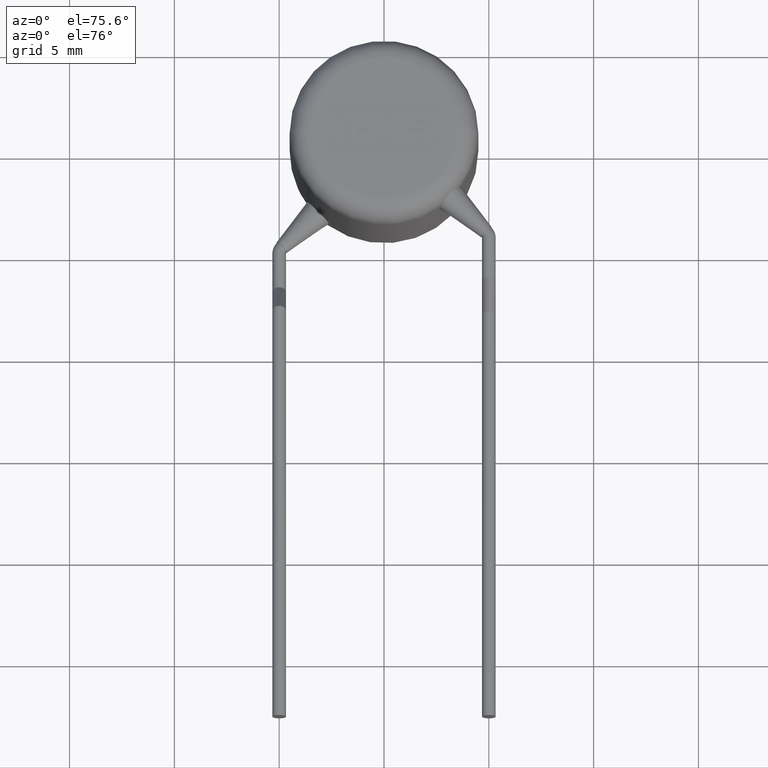
[diagram: clean part render]
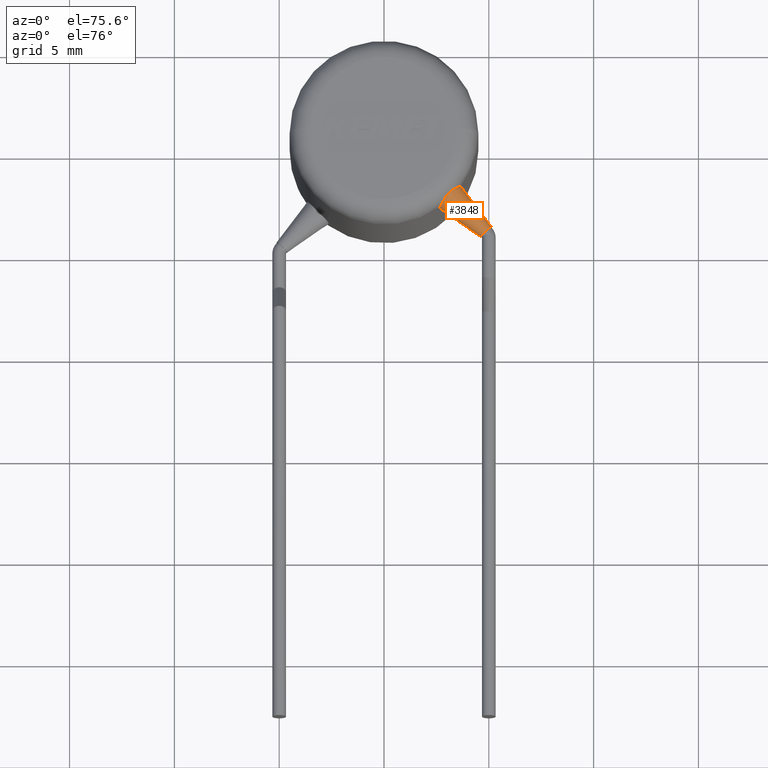
[diagram: same view with one face highlighted and labeled with its STEP entity id]
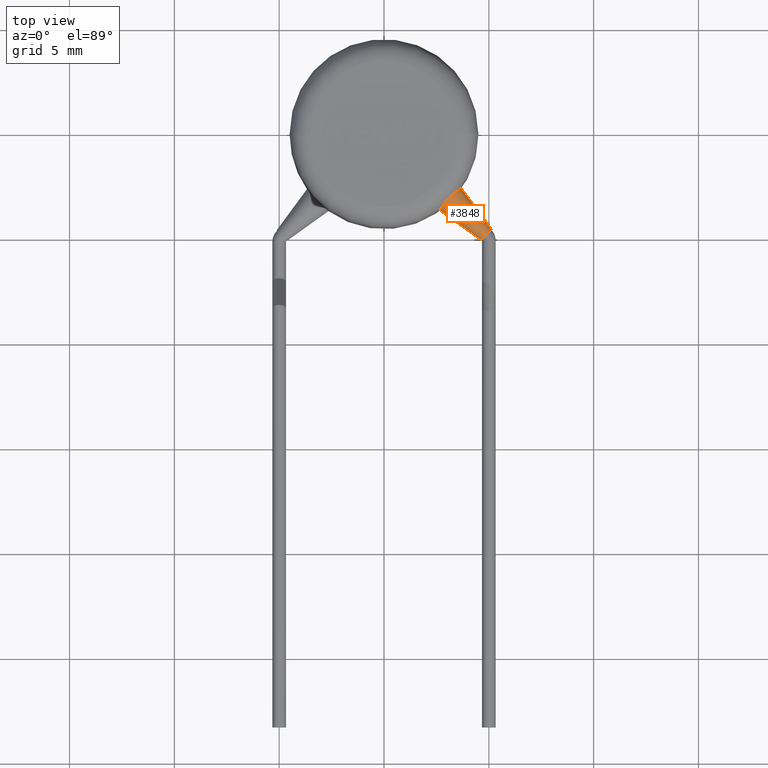
[diagram: same view with one face highlighted and labeled with its STEP entity id]
A machine part, auxiliary view. The second image highlights one B-rep face of the part: STEP entity #3848.
A second angle (top view) of the same face is appended — the face is thin or edge-on in the first view.
In plain terms, the highlighted conical surface has half-angle 9 deg.
Its self-contained STEP definition (entity closure, byte-faithful):
#18 = CARTESIAN_POINT ( 'NONE',  ( 3.537774627374341600, -2.731539401841060600, 4.767834668631663500 ) ) ;
#22 = ORIENTED_EDGE ( 'NONE', *, *, #4138, .T. ) ;
#63 = CARTESIAN_POINT ( 'NONE',  ( 2.916615913242144800, -3.298463240625549200, 4.943112092719712100 ) ) ;
#114 = DIRECTION ( 'NONE',  ( -0.7118797090993509400, 0.7023014166101501100, -0.0000000000000000000 ) ) ;
#149 = CARTESIAN_POINT ( 'NONE',  ( 5.126726062457616500, -4.566090218175484800, 4.250000000000000000 ) ) ;
#159 = CARTESIAN_POINT ( 'NONE',  ( 3.666443576743136900, -2.609235454823797700, 4.419790969414293600 ) ) ;
#259 = DIRECTION ( 'NONE',  ( -0.5932511421792816500, 0.8050174422352459600, 0.0000000000000000000 ) ) ;
#359 = CARTESIAN_POINT ( 'NONE',  ( 2.646112073073608100, -3.639792699692399900, 4.250000000000000000 ) ) ;
#362 = VECTOR ( 'NONE', #259, 1000.000000000000100 ) ;
#370 = AXIS2_PLACEMENT_3D ( 'NONE', #2125, #114, #4201 ) ;
#379 = CARTESIAN_POINT ( 'NONE',  ( 2.778457072696073100, -3.501578080557171500, 4.766552044153065100 ) ) ;
#426 = ORIENTED_EDGE ( 'NONE', *, *, #2336, .F. ) ;
#677 = CARTESIAN_POINT ( 'NONE',  ( 3.215069661348278100, -2.962667632175298900, 4.994128862037253000 ) ) ;
#723 = CARTESIAN_POINT ( 'NONE',  ( 3.337098885401193800, -2.872082357204977000, 4.943306452826695900 ) ) ;
#762 = CARTESIAN_POINT ( 'NONE',  ( 4.880920566644063800, -4.815248116360257800, 4.250000000000000000 ) ) ;
#843 = CARTESIAN_POINT ( 'NONE',  ( 3.648708616503526100, -2.633804364764573200, 4.500000000000000000 ) ) ;
#868 = ORIENTED_EDGE ( 'NONE', *, *, #3494, .F. ) ;
#1007 = CONICAL_SURFACE ( 'NONE', #370, 0.3500000000000000900, 0.1570796326794901000 ) ;
#1163 = B_SPLINE_CURVE_WITH_KNOTS ( 'NONE', 3,
 ( #1196, #3873, #2381, #359 ),
 .UNSPECIFIED., .F., .F.,
 ( 4, 4 ),
 ( 2.108006401047497600E-007, 0.0002544159492725235700 ),
 .UNSPECIFIED. ) ;
#1196 = CARTESIAN_POINT ( 'NONE',  ( 2.682986095145547500, -3.612697830327861400, 4.500000000000001800 ) ) ;
#1298 = CIRCLE ( 'NONE', #2321, 0.3500000000000000900 ) ;
#1440 = VERTEX_POINT ( 'NONE', #4148 ) ;
#1619 = DIRECTION ( 'NONE',  ( 0.7023014166101498900, 0.7118797090993510500, 0.0000000000000000000 ) ) ;
#1661 = LINE ( 'NONE', #3564, #1771 ) ;
#1771 = VECTOR ( 'NONE', #2625, 1000.000000000000000 ) ;
#1869 = B_SPLINE_CURVE_WITH_KNOTS ( 'NONE', 3,
 ( #3696, #3025, #379, #63, #2019, #677, #723, #18, #3369, #3000 ),
 .UNSPECIFIED., .F., .F.,
 ( 4, 2, 2, 2, 4 ),
 ( 2.106087963517530100E-007, 0.0004503929778220489000, 0.0009005753468477459800, 0.001350757715873443200, 0.001800940084899140200 ),
 .UNSPECIFIED. ) ;
#1970 = VERTEX_POINT ( 'NONE', #149 ) ;
#2019 = CARTESIAN_POINT ( 'NONE',  ( 3.004456836488973000, -3.176445053992536000, 4.993626882959889100 ) ) ;
#2036 = VERTEX_POINT ( 'NONE', #3518 ) ;
#2125 = CARTESIAN_POINT ( 'NONE',  ( 4.880920566644063800, -4.815248116360257800, 4.250000000000000000 ) ) ;
#2247 = EDGE_CURVE ( 'NONE', #2036, #3745, #1661, .T. ) ;
#2321 = AXIS2_PLACEMENT_3D ( 'NONE', #762, #3616, #1619 ) ;
#2336 = EDGE_CURVE ( 'NONE', #1970, #2036, #1298, .T. ) ;
#2381 = CARTESIAN_POINT ( 'NONE',  ( 2.646112073073609800, -3.639792699692401700, 4.335624059480523800 ) ) ;
#2625 = DIRECTION ( 'NONE',  ( -0.8129794349880926600, 0.5822923993033410900, -1.915769668878478400E-017 ) ) ;
#2629 = VERTEX_POINT ( 'NONE', #2697 ) ;
#2638 = B_SPLINE_CURVE_WITH_KNOTS ( 'NONE', 3,
 ( #4130, #2842, #159, #843 ),
 .UNSPECIFIED., .F., .F.,
 ( 4, 4 ),
 ( 0.002535038783490029200, 0.002788621637926730300 ),
 .UNSPECIFIED. ) ;
#2655 = ORIENTED_EDGE ( 'NONE', *, *, #3849, .T. ) ;
#2697 = CARTESIAN_POINT ( 'NONE',  ( 3.648708616503526100, -2.633804364764573200, 4.500000000000000000 ) ) ;
#2710 = CARTESIAN_POINT ( 'NONE',  ( 2.682986095145547500, -3.612697830327861400, 4.500000000000001800 ) ) ;
#2820 = CARTESIAN_POINT ( 'NONE',  ( 2.646112073073608100, -3.639792699692399900, 4.250000000000000000 ) ) ;
#2831 = FACE_OUTER_BOUND ( 'NONE', #3949, .T. ) ;
#2842 = CARTESIAN_POINT ( 'NONE',  ( 3.675301525212610000, -2.596566713714451200, 4.334524098312796200 ) ) ;
#2941 = EDGE_CURVE ( 'NONE', #1440, #2629, #2638, .T. ) ;
#3000 = CARTESIAN_POINT ( 'NONE',  ( 3.648708616503526100, -2.633804364764573200, 4.500000000000000000 ) ) ;
#3025 = CARTESIAN_POINT ( 'NONE',  ( 2.726202070651297900, -3.580603294107113300, 4.642491593650507100 ) ) ;
#3369 = CARTESIAN_POINT ( 'NONE',  ( 3.617194009312651600, -2.677462739831090400, 4.642529560689613500 ) ) ;
#3477 = LINE ( 'NONE', #3547, #362 ) ;
#3494 = EDGE_CURVE ( 'NONE', #4029, #2629, #1869, .T. ) ;
#3518 = CARTESIAN_POINT ( 'NONE',  ( 4.635115070830511100, -5.064406014545030900, 4.250000000000000000 ) ) ;
#3547 = CARTESIAN_POINT ( 'NONE',  ( 5.126726062457616500, -4.566090218175484800, 4.250000000000000000 ) ) ;
#3564 = CARTESIAN_POINT ( 'NONE',  ( 4.635115070830511100, -5.064406014545030900, 4.250000000000000000 ) ) ;
#3616 = DIRECTION ( 'NONE',  ( 0.7118797090993509400, -0.7023014166101501100, 0.0000000000000000000 ) ) ;
#3696 = CARTESIAN_POINT ( 'NONE',  ( 2.682986095145547500, -3.612697830327861400, 4.500000000000001800 ) ) ;
#3745 = VERTEX_POINT ( 'NONE', #2820 ) ;
#3765 = ORIENTED_EDGE ( 'NONE', *, *, #2247, .F. ) ;
#3848 = ADVANCED_FACE ( 'NONE', ( #2831 ), #1007, .T. ) ;
#3849 = EDGE_CURVE ( 'NONE', #1970, #1440, #3477, .T. ) ;
#3873 = CARTESIAN_POINT ( 'NONE',  ( 2.658602946359123600, -3.630806084110022700, 4.419603949971404200 ) ) ;
#3949 = EDGE_LOOP ( 'NONE', ( #3765, #426, #2655, #4052, #868, #22 ) ) ;
#4029 = VERTEX_POINT ( 'NONE', #2710 ) ;
#4052 = ORIENTED_EDGE ( 'NONE', *, *, #2941, .T. ) ;
#4130 = CARTESIAN_POINT ( 'NONE',  ( 3.675301525212609600, -2.596566713714450400, 4.250000000000000000 ) ) ;
#4138 = EDGE_CURVE ( 'NONE', #4029, #3745, #1163, .T. ) ;
#4148 = CARTESIAN_POINT ( 'NONE',  ( 3.675301525212609600, -2.596566713714450400, 4.250000000000000000 ) ) ;
#4201 = DIRECTION ( 'NONE',  ( 0.7023014166101498900, 0.7118797090993510500, 0.0000000000000000000 ) ) ;